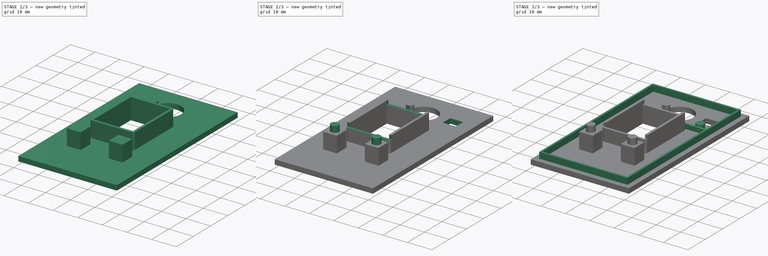
[diagram: build sequence overview — one tinted view per stage of 3, left to right]
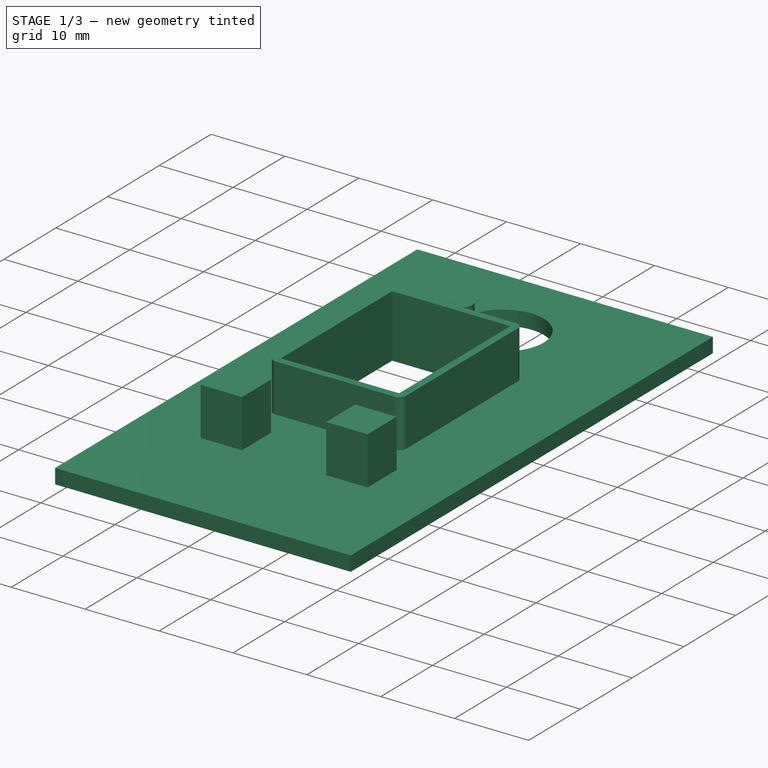
[diagram: stage 1 of 3 — iso view after this stage's code; geometry added in this stage tinted green]
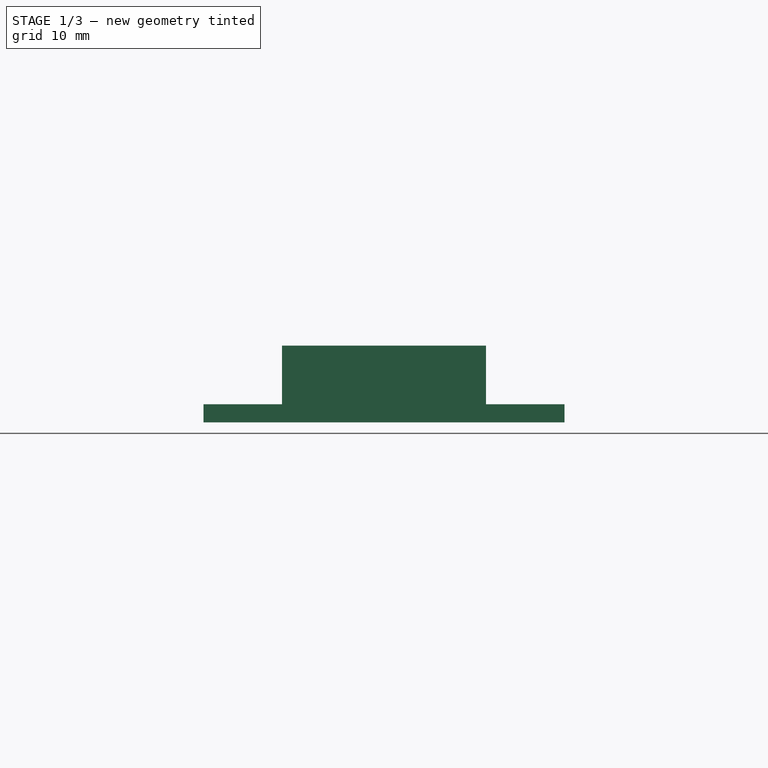
[diagram: stage 1 of 3 — front view after this stage's code; geometry added in this stage tinted green]
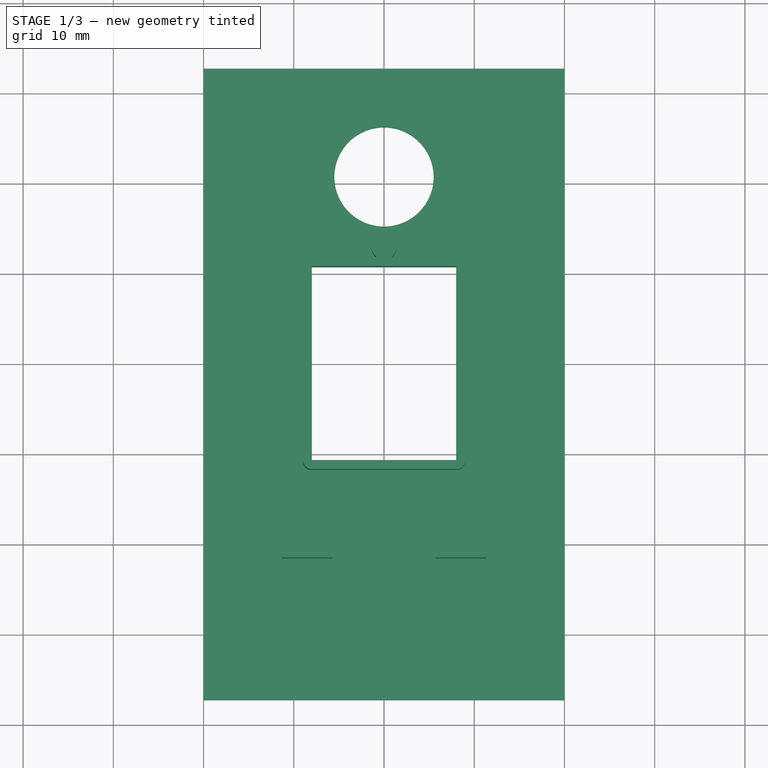
[diagram: stage 1 of 3 — top view after this stage's code; geometry added in this stage tinted green]
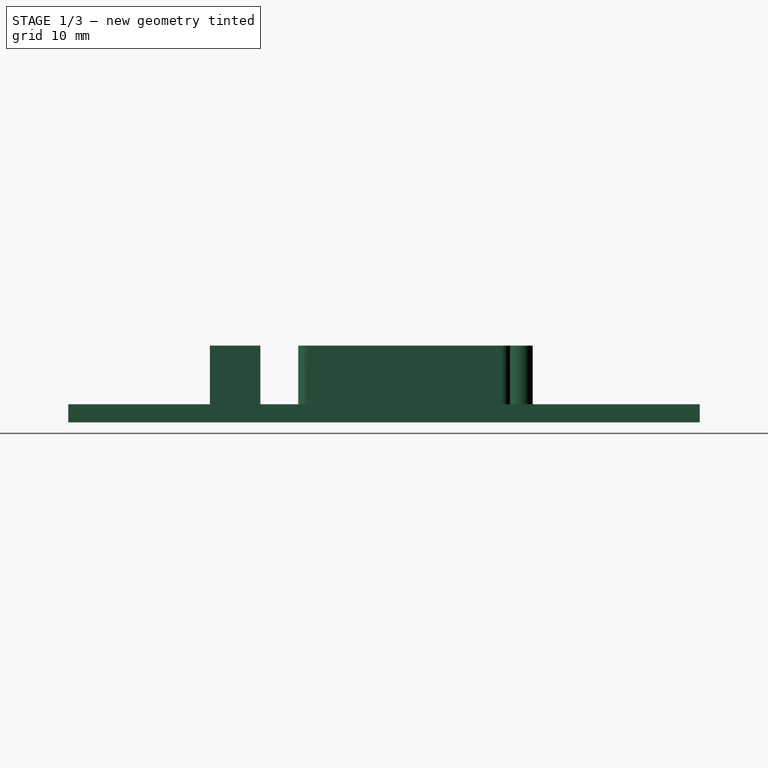
[diagram: stage 1 of 3 — right view after this stage's code; geometry added in this stage tinted green]
FCSTD DOCUMENT  (FreeCAD 2024.409R14555 (Git shallow))
Label: multi-sensor-hass-lidv2-realthunder
License: All rights reserved
LicenseURL: http://en.wikipedia.org/wiki/All_rights_reserved
objects: Sketcher::SketchObject×7, PartDesign::Pad×5, PartDesign::Pocket×2, PartDesign::Body×1
note: 36 computed .brp shape members not serialized (recipe doc carries the construction recipe); baked Part::Feature solids carry a one-line shape summary decoded from their .brp

FEATURE [Sketcher::SketchObject] Sketch
  ArcFitTolerance = 0
  AttachmentSupport = -> [XY_Plane]
  ExternalBSplineMaxDegree = 0
  ExternalBSplineTolerance = 0
  FullyConstrained = true
  InternalTolerance = 1e-06
  InvalidShape = false
  MakeInternals = false
  MapMode = 5
  TreeRank = 0
  ValidateShape = false
  sketch-geometry (10):
    g0: LineSegment StartX=-20 StartY=32.75 StartZ=0 EndX=-20 EndY=-37.25 EndZ=0
    g1: LineSegment StartX=-20 StartY=-37.25 StartZ=0 EndX=20 EndY=-37.25 EndZ=0
    g2: LineSegment StartX=20 StartY=-37.25 StartZ=0 EndX=20 EndY=32.75 EndZ=0
    g3: LineSegment StartX=20 StartY=32.75 StartZ=0 EndX=-20 EndY=32.75 EndZ=0
    g4: Circle CenterX=0 CenterY=20.75 CenterZ=0 NormalX=0 NormalY=0 NormalZ=1 AngleXU=0 Radius=5.5
    g5: LineSegment StartX=-8 StartY=-10.75 StartZ=0 EndX=8 EndY=-10.75 EndZ=0
    g6: LineSegment StartX=8 StartY=-10.75 StartZ=0 EndX=8 EndY=10.75 EndZ=0
    g7: LineSegment StartX=8 StartY=10.75 StartZ=0 EndX=-8 EndY=10.75 EndZ=0
    g8: LineSegment StartX=-8 StartY=10.75 StartZ=0 EndX=-8 EndY=-10.75 EndZ=0
    g9: GeomPoint [constr] X=0 Y=0 Z=0
  constraints (26):
    c: Coincident(g0,g1)
    c: Coincident(g1,g2)
    c: Coincident(g2,g3)
    c: Coincident(g3,g0)
    c: Vertical(g0)
    c: Vertical(g2)
    c: Horizontal(g1)
    c: DistanceX(g1,g1) = 40
    c: DistanceY(g0,g0) = 70
    c: PointOnObject(g4,g-2)
    c: Diameter(g4) = 11
    c: Distance(g4,g3) = 12
    c: Coincident(g5,g6)
    c: Coincident(g6,g7)
    c: Coincident(g7,g8)
    c: Coincident(g8,g5)
    c: Horizontal(g5)
    c: Horizontal(g7)
    c: Vertical(g6)
    c: Vertical(g8)
    c: Symmetric(g7,g5,g9)
    c: Distance(g6,g8) = 16
    c: Distance(g5,g7) = 21.5
    c: Distance(g4,g7) = 10
    c: Coincident(g9,g-1)
    c: Symmetric(g2,g0,g-2)
FEATURE [PartDesign::Pad] Pad
  AddSubType = 0
  AutoTaperInnerAngle = true
  CheckUpToFaceLimits = true
  ClaimChildren = false
  Direction = (0,0,1)
  Fit = 0
  FitJoin = 0
  InnerFit = 0
  InnerFitJoin = 0
  InvalidShape = false
  Length = 2
  Length2 = 10
  NewSolid = false
  Profile = -> Sketch
  ReferenceAxis = -> Sketch [N_Axis]
  Suppress = false
  TaperInnerAngle = 0
  TaperInnerAngleRev = 0
  TreeRank = 0
  Type = 0
  ValidateShape = false
  _ProfileBasedVersion = 0
FEATURE [Sketcher::SketchObject] Sketch001
  ArcFitTolerance = 0
  AttachmentSupport = -> [Pad]
  ExternalBSplineMaxDegree = 0
  ExternalBSplineTolerance = 0
  ExternalGeometry = -> [Pad]
  FullyConstrained = true
  InternalTolerance = 1e-06
  InvalidShape = false
  MakeInternals = false
  MapMode = 5
  Placement = pos=(0,0,2) rot=(0,0,1;0rad)
  Support = -> [Pad]
  TreeRank = 0
  ValidateShape = false
  sketch-geometry (25):
    g0: LineSegment StartX=-8 StartY=10.75 StartZ=0 EndX=-8 EndY=-10.75 EndZ=0
    g1: LineSegment StartX=-8 StartY=-10.75 StartZ=0 EndX=8 EndY=-10.75 EndZ=0
    g2: LineSegment StartX=8 StartY=-10.75 StartZ=0 EndX=8 EndY=10.75 EndZ=0
    g3: LineSegment StartX=8 StartY=10.75 StartZ=0 EndX=-8 EndY=10.75 EndZ=0
    g4: GeomPoint [constr] X=0 Y=-2e-16 Z=0
    g5: LineSegment StartX=-11.3 StartY=-15.95 StartZ=0 EndX=-11.3 EndY=-21.55 EndZ=0
    g6: LineSegment StartX=-11.3 StartY=-21.55 StartZ=0 EndX=-5.7 EndY=-21.55 EndZ=0
    g7: LineSegment StartX=-5.7 StartY=-21.55 StartZ=0 EndX=-5.7 EndY=-15.95 EndZ=0
    g8: LineSegment StartX=-5.7 StartY=-15.95 StartZ=0 EndX=-11.3 EndY=-15.95 EndZ=0
    g9: GeomPoint [constr] X=-8.5 Y=-18.75 Z=0
    g10: LineSegment StartX=5.7 StartY=-15.95 StartZ=0 EndX=5.7 EndY=-21.55 EndZ=0
    g11: LineSegment StartX=5.7 StartY=-21.55 StartZ=0 EndX=11.3 EndY=-21.55 EndZ=0
    g12: LineSegment StartX=11.3 StartY=-21.55 StartZ=0 EndX=11.3 EndY=-15.95 EndZ=0
    g13: LineSegment StartX=11.3 StartY=-15.95 StartZ=0 EndX=5.7 EndY=-15.95 EndZ=0
    g14: GeomPoint [constr] X=8.5 Y=-18.75 Z=0
    g15: LineSegment StartX=-8 StartY=-11.75 StartZ=0 EndX=8 EndY=-11.75 EndZ=0
    g16: ArcOfCircle CenterX=8 CenterY=-10.75 CenterZ=0 NormalX=0 NormalY=0 NormalZ=-1 AngleXU=1.5708 Radius=1 StartAngle=1.5708 EndAngle=3.14159
    g17: LineSegment StartX=9 StartY=-10.75 StartZ=0 EndX=9 EndY=10.75 EndZ=0
    g18: ArcOfCircle CenterX=8 CenterY=10.75 CenterZ=0 NormalX=0 NormalY=0 NormalZ=-1 AngleXU=0 Radius=1 StartAngle=1.5708 EndAngle=3.14159
    g19: LineSegment StartX=8 StartY=11.75 StartZ=0 EndX=0.8 EndY=11.75 EndZ=0
    g20: ArcOfCircle CenterX=-8 CenterY=10.75 CenterZ=0 NormalX=0 NormalY=0 NormalZ=-1 AngleXU=-1.5708 Radius=1 StartAngle=1.5708 EndAngle=3.14159
    g21: LineSegment StartX=-9 StartY=10.75 StartZ=0 EndX=-9 EndY=-10.75 EndZ=0
    g22: ArcOfCircle CenterX=-8 CenterY=-10.75 CenterZ=0 NormalX=0 NormalY=0 NormalZ=-1 AngleXU=-3.14159 Radius=1 StartAngle=1.5708 EndAngle=3.14159
    g23: ArcOfCircle CenterX=0 CenterY=12.8683 CenterZ=0 NormalX=0 NormalY=0 NormalZ=1 AngleXU=0 Radius=1.375 StartAngle=5.33335 EndAngle=10.3746
    g24: LineSegment StartX=-0.8 StartY=11.75 StartZ=0 EndX=-8.00001 EndY=11.75 EndZ=0
  constraints (60):
    c: Coincident(g0,g1)
    c: Coincident(g1,g2)
    c: Coincident(g2,g3)
    c: Coincident(g3,g0)
    c: Vertical(g0)
    c: Horizontal(g1)
    c: Horizontal(g3)
    c: Symmetric(g2,g0,g4)
    c: PointOnObject(g4,g-2)
    c: Coincident(g1,g-5)
    c: Coincident(g5,g6)
    c: Coincident(g6,g7)
    c: Coincident(g7,g8)
    c: Coincident(g8,g5)
    c: Vertical(g5)
    c: Vertical(g7)
    c: Horizontal(g6)
    c: Horizontal(g8)
    c: Symmetric(g7,g5,g9)
    c: Coincident(g10,g11)
    c: Coincident(g11,g12)
    c: Coincident(g12,g13)
    c: Coincident(g13,g10)
    c: Vertical(g10)
    c: Vertical(g12)
    c: Horizontal(g11)
    c: Horizontal(g13)
    c: Symmetric(g12,g10,g14)
    c: Equal(g5,g8)
    c: Equal(g8,g10)
    c: Equal(g10,g13)
    c: DistanceX(g6,g6) = 5.6
    c: Symmetric(g9,g14,g-2)
    c: Coincident(g2,g-4)
    c: Tangent(g15,g16) = -1.5708
    c: Tangent(g15,g22) = -1.5708
    c: Tangent(g16,g17) = -1.5708
    c: Tangent(g17,g18) = -1.5708
    c: Tangent(g18,g19) = -1.5708
    c: Coincident(g24,g20) = -1.5708
    c: Tangent(g20,g21) = -1.5708
    c: Tangent(g21,g22) = -1.5708
    c: Coincident(g22,g0)
    c: DistanceY(g9,g0) = 8
    c: DistanceX(g9,g0) = 0.5
    c: Coincident(g20,g0)
    c: Coincident(g18,g2)
    c: Coincident(g16,g1)
    c: Parallel(g17,g21)
    c: Parallel(g15,g19)
    c: Parallel(g15,g1)
    c: Distance(g17,g2) = 1
    c: PointOnObject(g23,g-2)
    c: Diameter(g23) = 2.75
    c: Coincident(g19,g23)
    c: Coincident(g24,g23)
    c: Horizontal(g24)
    c: Horizontal(g19,g23)
    c: Distance(g23,g19) = 1.6
    c: DistanceY(g0,g20) = 1
FEATURE [PartDesign::Pad] Pad001
  AddSubType = 0
  AutoTaperInnerAngle = true
  BaseFeature = -> Pad
  CheckUpToFaceLimits = true
  ClaimChildren = false
  Direction = (0,0,1)
  Fit = 0
  FitJoin = 0
  InnerFit = 0
  InnerFitJoin = 0
  InvalidShape = false
  Length = 6.5
  Length2 = 10
  NewSolid = false
  Profile = -> Sketch001
  ReferenceAxis = -> Sketch001 [N_Axis]
  Suppress = false
  TaperInnerAngle = 0
  TaperInnerAngleRev = 0
  TreeRank = 0
  Type = 0
  ValidateShape = false
  _ProfileBasedVersion = 0
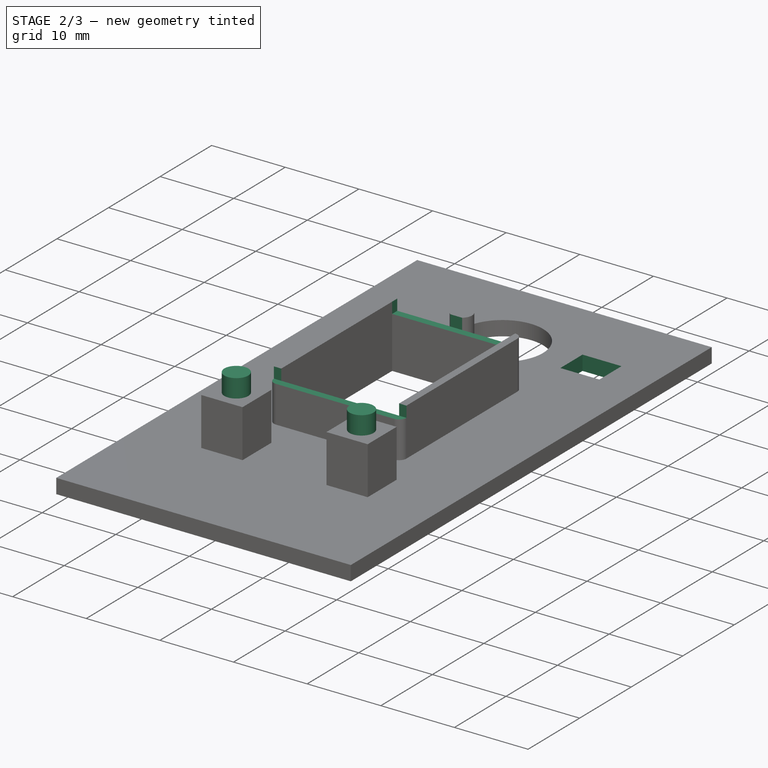
[diagram: stage 2 of 3 — iso view after this stage's code; geometry added in this stage tinted green]
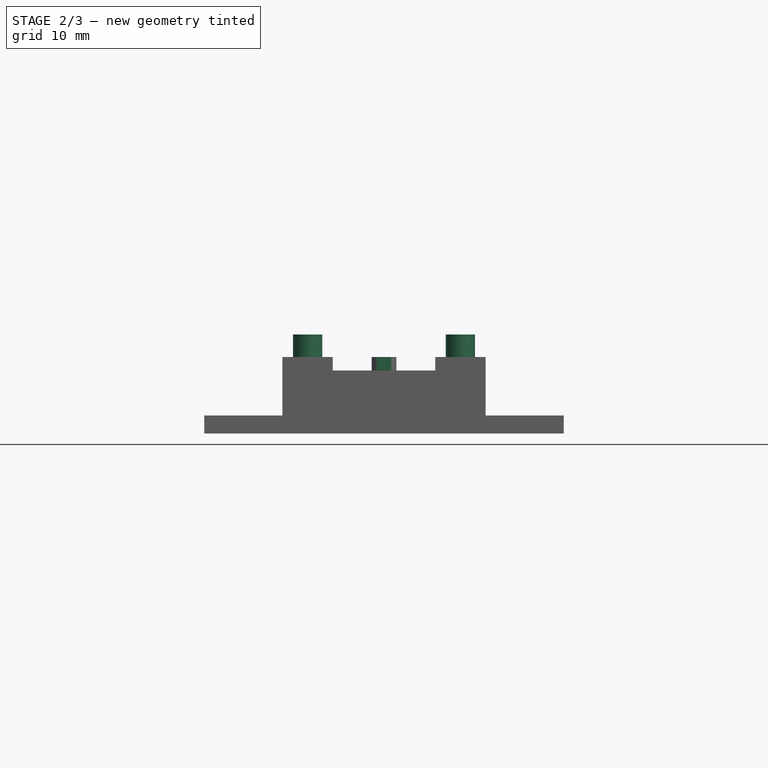
[diagram: stage 2 of 3 — front view after this stage's code; geometry added in this stage tinted green]
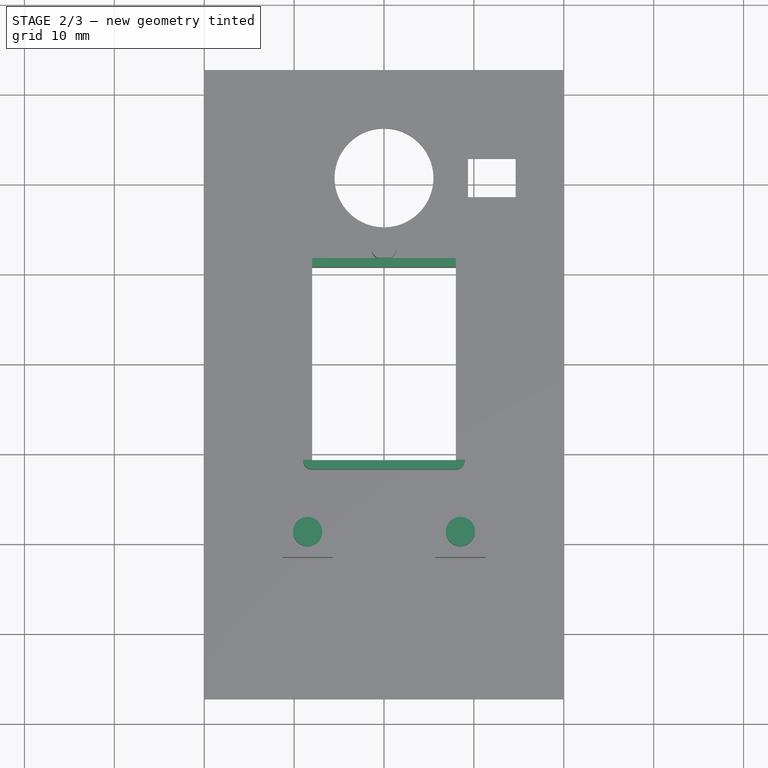
[diagram: stage 2 of 3 — top view after this stage's code; geometry added in this stage tinted green]
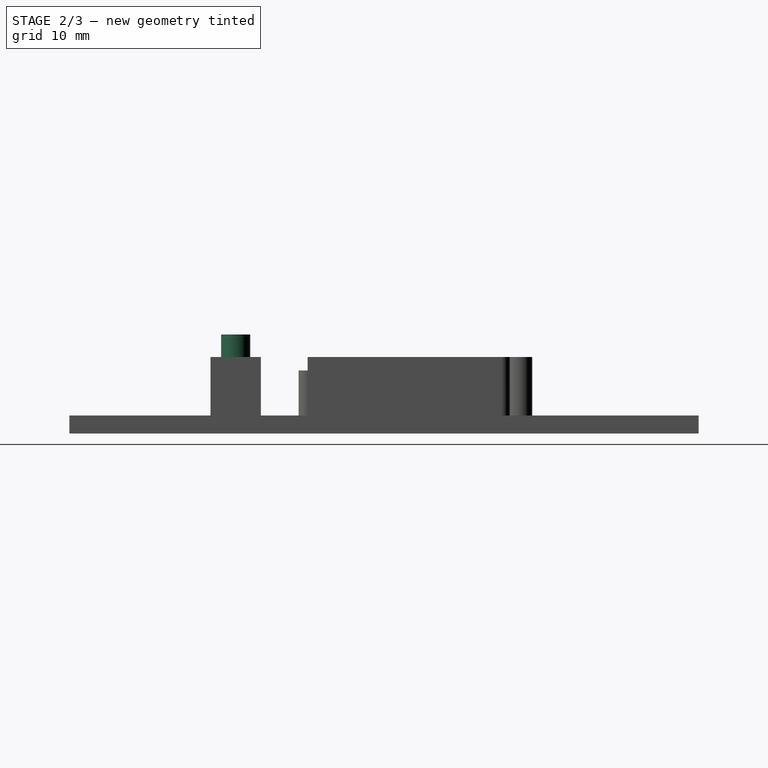
[diagram: stage 2 of 3 — right view after this stage's code; geometry added in this stage tinted green]
FEATURE [Sketcher::SketchObject] Sketch002
  ArcFitTolerance = 0
  AttachmentSupport = -> [Pad001]
  ExternalBSplineMaxDegree = 0
  ExternalBSplineTolerance = 0
  ExternalGeometry = -> [Pad001]
  FullyConstrained = true
  InternalTolerance = 1e-06
  InvalidShape = false
  MakeInternals = false
  MapMode = 5
  Placement = pos=(0,0,8.5) rot=(0,0,1;0rad)
  Support = -> [Pad001]
  TreeRank = 0
  ValidateShape = false
  sketch-geometry (2):
    g0: Circle CenterX=-8.5 CenterY=-18.75 CenterZ=0 NormalX=0 NormalY=0 NormalZ=1 AngleXU=0 Radius=1.625
    g1: Circle CenterX=8.5 CenterY=-18.75 CenterZ=0 NormalX=0 NormalY=0 NormalZ=1 AngleXU=0 Radius=1.625
  constraints (4):
    c: Equal(g0,g1)
    c: Symmetric(g-3,g-4,g0)
    c: Diameter(g0) = 3.25
    c: Symmetric(g-5,g-6,g1)
FEATURE [PartDesign::Pad] Pad002
  AddSubType = 0
  AutoTaperInnerAngle = true
  BaseFeature = -> Pad001
  CheckUpToFaceLimits = true
  ClaimChildren = false
  Direction = (0,0,1)
  Fit = 0
  FitJoin = 0
  InnerFit = 0
  InnerFitJoin = 0
  InvalidShape = false
  Length = 2.5
  Length2 = 10
  NewSolid = false
  Profile = -> Sketch002
  ReferenceAxis = -> Sketch002 [N_Axis]
  Suppress = false
  TaperInnerAngle = 0
  TaperInnerAngleRev = 0
  TreeRank = 0
  Type = 0
  ValidateShape = false
  _ProfileBasedVersion = 0
FEATURE [Sketcher::SketchObject] Sketch003
  ArcFitTolerance = 0
  AttachmentSupport = -> [Pad002]
  ExternalBSplineMaxDegree = 0
  ExternalBSplineTolerance = 0
  ExternalGeometry = -> [Pad002]
  FullyConstrained = true
  InternalTolerance = 1e-06
  InvalidShape = false
  MakeInternals = false
  MapMode = 5
  Placement = pos=(0,0,8.5) rot=(0,0,1;0rad)
  Support = -> [Pad002]
  TreeRank = 0
  ValidateShape = false
  sketch-geometry (8):
    g0: LineSegment StartX=-8.00001 StartY=11.75 StartZ=0 EndX=-8.00001 EndY=10.75 EndZ=0
    g1: LineSegment StartX=-8.00001 StartY=10.75 StartZ=0 EndX=8 EndY=10.75 EndZ=0
    g2: LineSegment StartX=8 StartY=10.75 StartZ=0 EndX=8 EndY=11.75 EndZ=0
    g3: LineSegment StartX=8 StartY=11.75 StartZ=0 EndX=-8.00001 EndY=11.75 EndZ=0
    g4: LineSegment StartX=-9 StartY=-10.75 StartZ=0 EndX=-9 EndY=-11.75 EndZ=0
    g5: LineSegment StartX=-9 StartY=-11.75 StartZ=0 EndX=9 EndY=-11.75 EndZ=0
    g6: LineSegment StartX=9 StartY=-11.75 StartZ=0 EndX=9 EndY=-10.75 EndZ=0
    g7: LineSegment StartX=9 StartY=-10.75 StartZ=0 EndX=-9 EndY=-10.75 EndZ=0
  constraints (20):
    c: Coincident(g0,g1)
    c: Coincident(g1,g2)
    c: Coincident(g2,g3)
    c: Coincident(g3,g0)
    c: Vertical(g0)
    c: Vertical(g2)
    c: Horizontal(g1)
    c: Horizontal(g3)
    c: Coincident(g0,g-3)
    c: Coincident(g1,g-5)
    c: Coincident(g4,g5)
    c: Coincident(g5,g6)
    c: Coincident(g6,g7)
    c: Coincident(g7,g4)
    c: Vertical(g4)
    c: Vertical(g6)
    c: Horizontal(g5)
    c: Coincident(g4,g-9)
    c: Coincident(g6,g-8)
    c: PointOnObject(g-4,g5)
FEATURE [PartDesign::Pocket] Pocket
  AddSubType = 1
  AutoTaperInnerAngle = true
  BaseFeature = -> Pad002
  CheckUpToFaceLimits = true
  ClaimChildren = false
  Direction = (0,0,-1)
  Fit = 0
  FitJoin = 0
  InnerFit = 0
  InnerFitJoin = 0
  InvalidShape = false
  Length = 1.5
  Length2 = 5
  NewSolid = false
  Profile = -> Sketch003
  ReferenceAxis = -> Sketch003 [N_Axis]
  Suppress = false
  TaperInnerAngle = 0
  TaperInnerAngleRev = 0
  TreeRank = 0
  Type = 0
  ValidateShape = false
  _ProfileBasedVersion = 0
  _Version = 0
FEATURE [Sketcher::SketchObject] Sketch004
  ArcFitTolerance = 0
  AttachmentSupport = -> [Pocket]
  ExternalBSplineMaxDegree = 0
  ExternalBSplineTolerance = 0
  ExternalGeometry = -> [Pocket]
  FullyConstrained = true
  InternalTolerance = 1e-06
  InvalidShape = false
  MakeInternals = false
  MapMode = 5
  Placement = pos=(0,0,2) rot=(0,0,1;0rad)
  Support = -> [Pocket]
  TreeRank = 0
  ValidateShape = false
  sketch-geometry (5):
    g0: LineSegment StartX=9.35 StartY=18.6 StartZ=0 EndX=14.65 EndY=18.6 EndZ=0
    g1: LineSegment StartX=14.65 StartY=18.6 StartZ=0 EndX=14.65 EndY=22.9 EndZ=0
    g2: LineSegment StartX=14.65 StartY=22.9 StartZ=0 EndX=9.35 EndY=22.9 EndZ=0
    g3: LineSegment StartX=9.35 StartY=22.9 StartZ=0 EndX=9.35 EndY=18.6 EndZ=0
    g4: GeomPoint [constr] X=12 Y=20.75 Z=0
  constraints (13):
    c: Coincident(g0,g1)
    c: Coincident(g1,g2)
    c: Coincident(g2,g3)
    c: Coincident(g3,g0)
    c: Horizontal(g0)
    c: Horizontal(g2)
    c: Vertical(g1)
    c: Vertical(g3)
    c: Symmetric(g2,g0,g4)
    c: Distance(g1,g3) = 5.3
    c: Distance(g0,g2) = 4.3
    c: Horizontal(g4,g-3)
    c: Distance(g-3,g4) = 12
FEATURE [PartDesign::Pocket] Pocket001
  AddSubType = 1
  AutoTaperInnerAngle = true
  BaseFeature = -> Pocket
  CheckUpToFaceLimits = true
  ClaimChildren = false
  Direction = (0,0,-1)
  Fit = 0
  FitJoin = 0
  InnerFit = 0
  InnerFitJoin = 0
  InvalidShape = false
  Length = 5
  Length2 = 5
  NewSolid = false
  Profile = -> Sketch004
  ReferenceAxis = -> Sketch004 [N_Axis]
  Suppress = false
  TaperInnerAngle = 0
  TaperInnerAngleRev = 0
  TreeRank = 0
  Type = 1
  ValidateShape = false
  _ProfileBasedVersion = 0
  _Version = 0
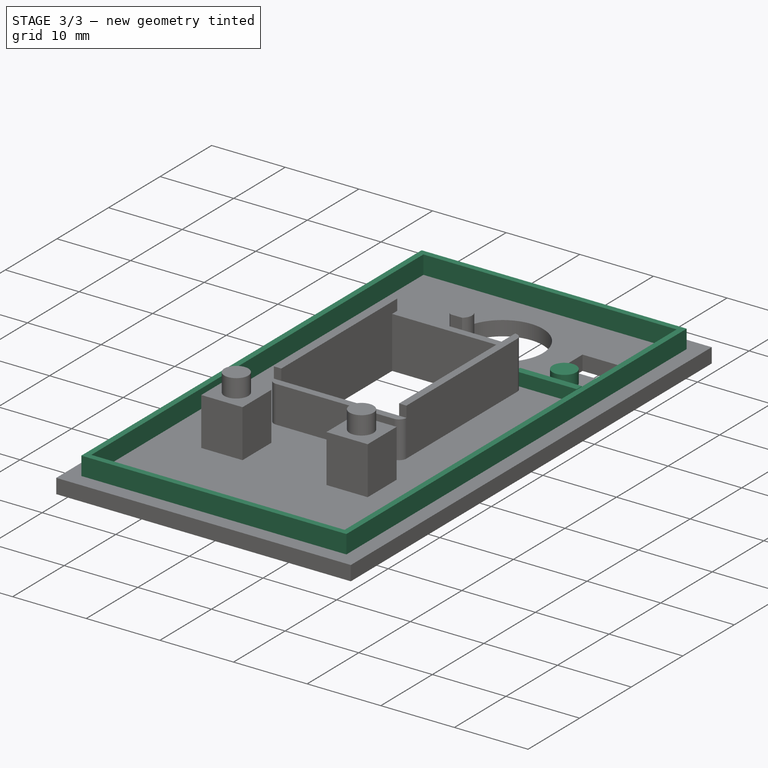
[diagram: stage 3 of 3 — iso view after this stage's code; geometry added in this stage tinted green]
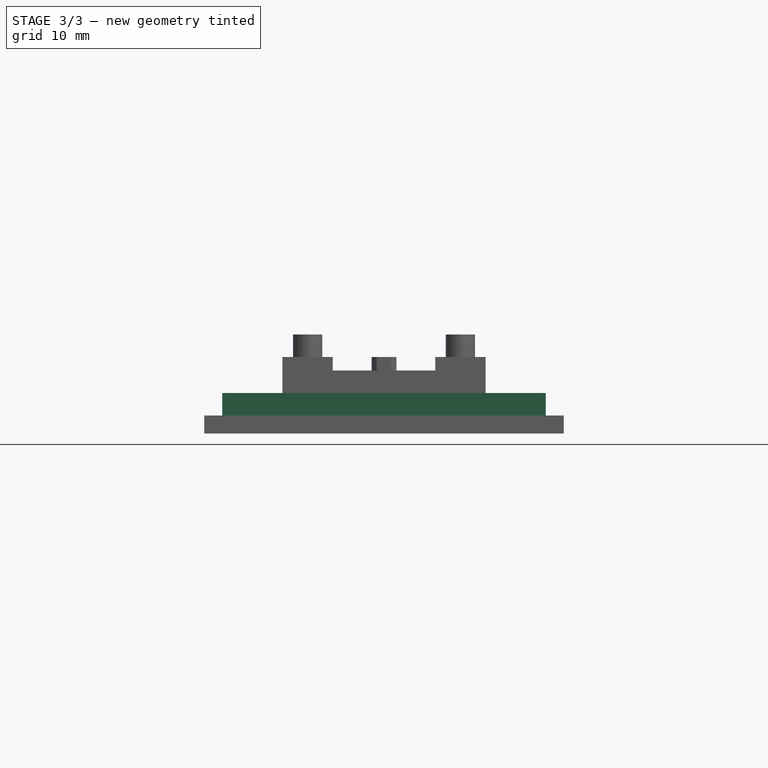
[diagram: stage 3 of 3 — front view after this stage's code; geometry added in this stage tinted green]
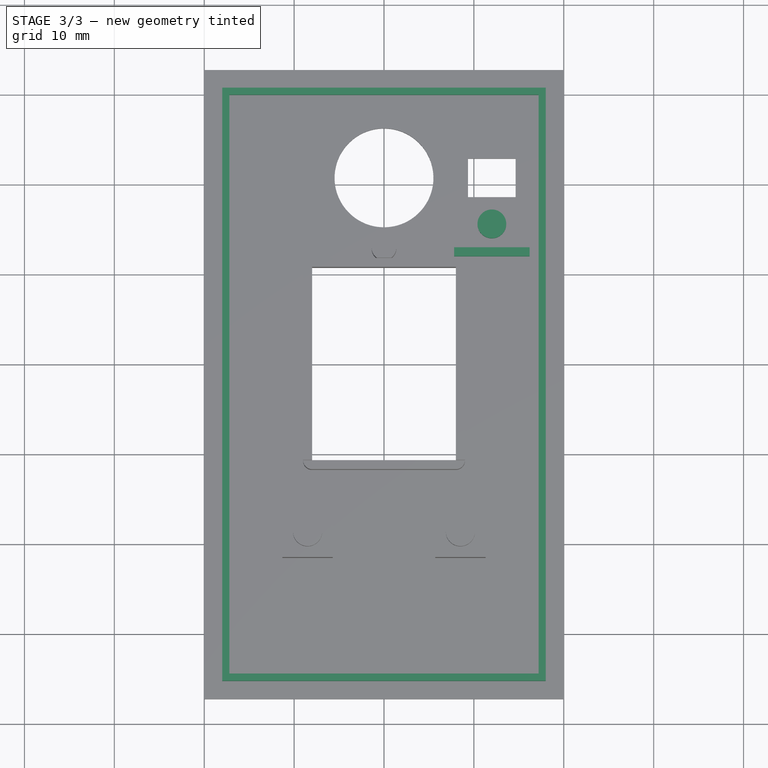
[diagram: stage 3 of 3 — top view after this stage's code; geometry added in this stage tinted green]
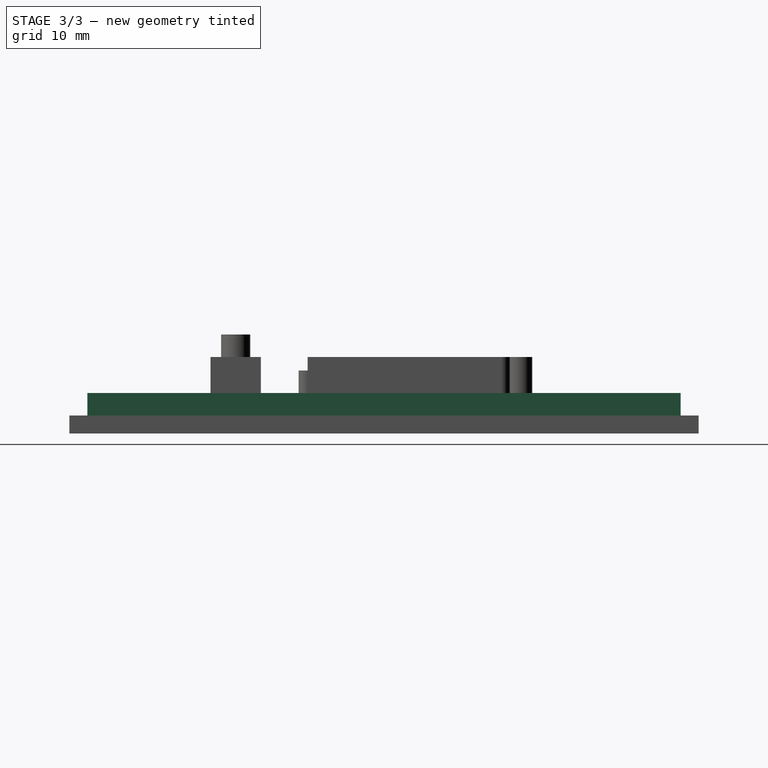
[diagram: stage 3 of 3 — right view after this stage's code; geometry added in this stage tinted green]
FEATURE [Sketcher::SketchObject] Sketch005
  ArcFitTolerance = 0
  AttachmentSupport = -> [Pocket001]
  ExternalBSplineMaxDegree = 0
  ExternalBSplineTolerance = 0
  ExternalGeometry = -> [Pocket001]
  FullyConstrained = true
  InternalTolerance = 1e-06
  InvalidShape = false
  MakeInternals = false
  MapMode = 5
  Placement = pos=(0,0,2) rot=(0,0,1;0rad)
  Support = -> [Pocket001]
  TreeRank = 0
  ValidateShape = false
  sketch-geometry (7):
    g0: GeomPoint X=12 Y=20.75 Z=0
    g1: Circle CenterX=12 CenterY=15.6 CenterZ=0 NormalX=0 NormalY=0 NormalZ=1 AngleXU=0 Radius=1.6
    g2: LineSegment StartX=7.8 StartY=13 StartZ=0 EndX=7.8 EndY=12 EndZ=0
    g3: LineSegment StartX=7.8 StartY=12 StartZ=0 EndX=16.2 EndY=12 EndZ=0
    g4: LineSegment StartX=16.2 StartY=12 StartZ=0 EndX=16.2 EndY=13 EndZ=0
    g5: LineSegment StartX=16.2 StartY=13 StartZ=0 EndX=7.8 EndY=13 EndZ=0
    g6: GeomPoint [constr] X=12 Y=12.5 Z=0
  constraints (17):
    c: Symmetric(g-5,g-3,g0)
    c: Diameter(g1) = 3.2
    c: Vertical(g1,g0)
    c: Distance(g1,g-5) = 7.3
    c: Coincident(g2,g3)
    c: Coincident(g3,g4)
    c: Coincident(g4,g5)
    c: Coincident(g5,g2)
    c: Vertical(g2)
    c: Vertical(g4)
    c: Horizontal(g3)
    c: Horizontal(g5)
    c: Symmetric(g4,g2,g6)
    c: Vertical(g1,g6)
    c: Distance(g1,g5) = 2.6
    c: DistanceY(g4,g4) = 1
    c: DistanceX(g3,g3) = 8.4
FEATURE [PartDesign::Pad] Pad003
  AddSubType = 0
  AlongSketchNormal = false
  AutoTaperInnerAngle = true
  BaseFeature = -> Pocket001
  CheckUpToFaceLimits = true
  ClaimChildren = false
  Direction = (0,0,1)
  Fit = 0
  FitJoin = 0
  InnerFit = 0
  InnerFitJoin = 0
  InvalidShape = false
  Length = 1.75
  Length2 = 10
  NewSolid = false
  Profile = -> Sketch005 [Edge1,Edge5,Edge3,Edge4,Edge2]
  ReferenceAxis = -> Sketch005 [N_Axis]
  Suppress = false
  TaperInnerAngle = 0
  TaperInnerAngleRev = 0
  TreeRank = 0
  Type = 0
  ValidateShape = false
  _ProfileBasedVersion = 0
FEATURE [Sketcher::SketchObject] Sketch006
  ArcFitTolerance = 0
  AttachmentSupport = -> [Pad003]
  ExternalBSplineMaxDegree = 0
  ExternalBSplineTolerance = 0
  ExternalGeometry = -> [Pad003]
  FullyConstrained = true
  InternalTolerance = 1e-06
  InvalidShape = false
  MakeInternals = false
  MapMode = 5
  Placement = pos=(0,0,2) rot=(0,0,1;0rad)
  Support = -> [Pad003]
  TreeRank = 0
  ValidateShape = false
  sketch-geometry (8):
    g0: LineSegment StartX=-18 StartY=30.75 StartZ=0 EndX=18 EndY=30.75 EndZ=0
    g1: LineSegment StartX=18 StartY=30.75 StartZ=0 EndX=18 EndY=-35.25 EndZ=0
    g2: LineSegment StartX=18 StartY=-35.25 StartZ=0 EndX=-18 EndY=-35.25 EndZ=0
    g3: LineSegment StartX=-18 StartY=-35.25 StartZ=0 EndX=-18 EndY=30.75 EndZ=0
    g4: LineSegment StartX=-17.2 StartY=29.95 StartZ=0 EndX=17.2 EndY=29.95 EndZ=0
    g5: LineSegment StartX=17.2 StartY=29.95 StartZ=0 EndX=17.2 EndY=-34.45 EndZ=0
    g6: LineSegment StartX=17.2 StartY=-34.45 StartZ=0 EndX=-17.2 EndY=-34.45 EndZ=0
    g7: LineSegment StartX=-17.2 StartY=-34.45 StartZ=0 EndX=-17.2 EndY=29.95 EndZ=0
  constraints (24):
    c: Coincident(g0,g1)
    c: Coincident(g1,g2)
    c: Coincident(g2,g3)
    c: Coincident(g3,g0)
    c: Horizontal(g0)
    c: Horizontal(g2)
    c: Vertical(g1)
    c: Vertical(g3)
    c: Coincident(g4,g5)
    c: Coincident(g5,g6)
    c: Coincident(g6,g7)
    c: Coincident(g7,g4)
    c: Horizontal(g4)
    c: Horizontal(g6)
    c: Vertical(g5)
    c: Vertical(g7)
    c: DistanceX(g-5,g4) = 2.8
    c: DistanceX(g4,g-4) = 2.8
    c: DistanceY(g4,g-5) = 2.8
    c: DistanceY(g-6,g6) = 2.8
    c: DistanceY(g4,g0) = 0.8
    c: DistanceY(g1,g5) = 0.8
    c: DistanceX(g2,g6) = 0.8
    c: DistanceX(g5,g1) = 0.8
FEATURE [PartDesign::Pad] Pad004
  AddSubType = 0
  AlongSketchNormal = false
  AutoTaperInnerAngle = true
  BaseFeature = -> Pad003
  CheckUpToFaceLimits = true
  ClaimChildren = false
  Direction = (0,0,1)
  Fit = 0
  FitJoin = 0
  InnerFit = 0
  InnerFitJoin = 0
  InvalidShape = false
  Length = 2.5
  Length2 = 10
  NewSolid = false
  Profile = -> Sketch006
  ReferenceAxis = -> Sketch006 [N_Axis]
  Suppress = false
  TaperInnerAngle = 0
  TaperInnerAngleRev = 0
  TreeRank = 0
  Type = 0
  ValidateShape = false
  _ProfileBasedVersion = 0
FEATURE [PartDesign::Body] Body
  AutoGroupSolids = false
  ClaimAllChildren = false
  ExportMode = 0
  Group = -> [Sketch,Pad,Sketch001,Pad001,Sketch002,Pad002,Sketch003,Pocket,Sketch004,Pocket001,Sketch005,Pad003,Sketch006,Pad004]
  InvalidShape = false
  Origin = -> Origin
  Tip = -> Pad004
  TreeRank = 0
  ValidateShape = false
  _ExportChildren = -> [Pad,Pad001,Pad002,Pocket,Pocket001,Pad003,Pad004]
  _GroupVersion = 1
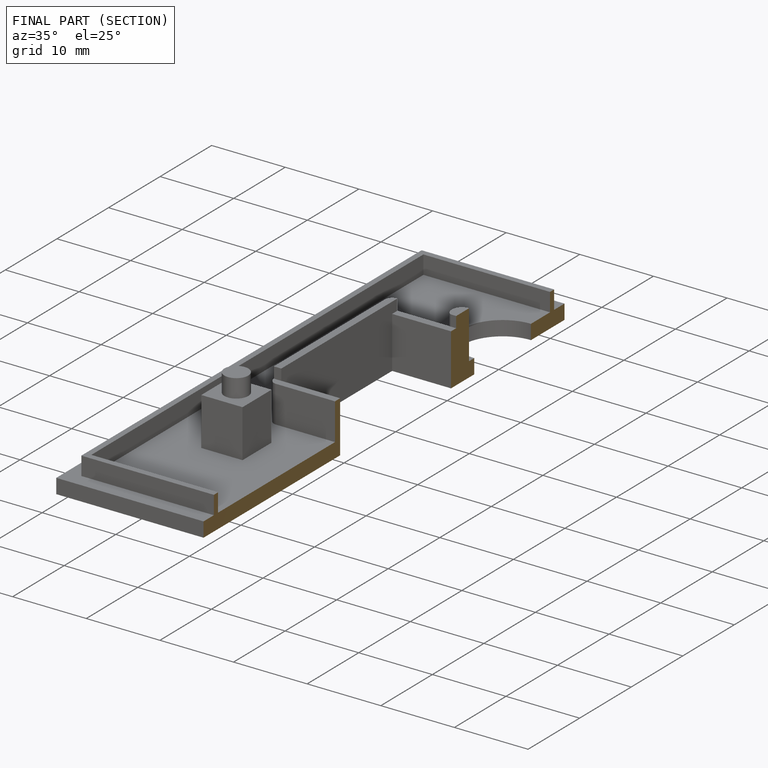
[diagram: finished part — half-section view (interior)]
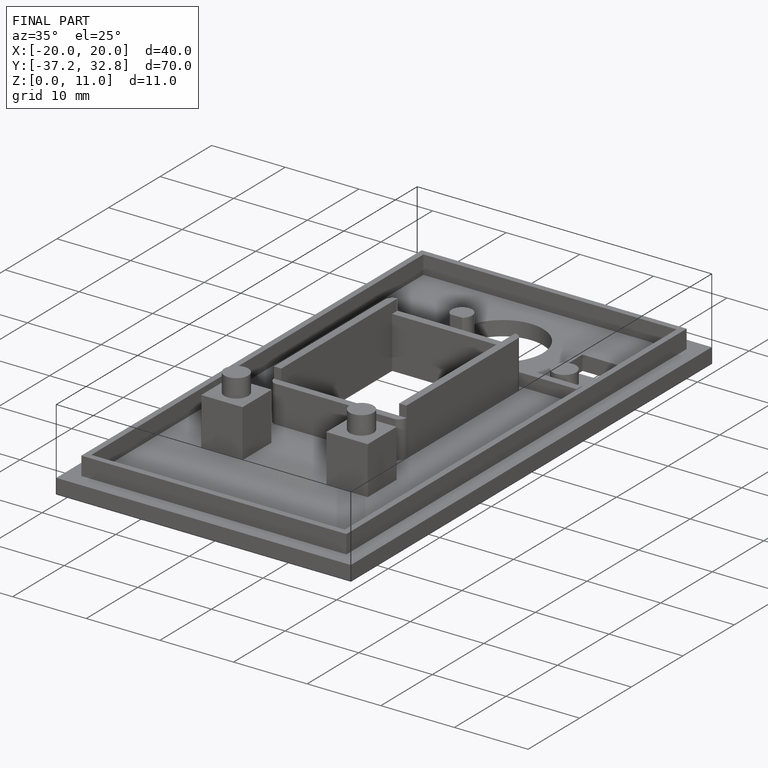
[diagram: finished part — iso view with bounding-box wireframe]
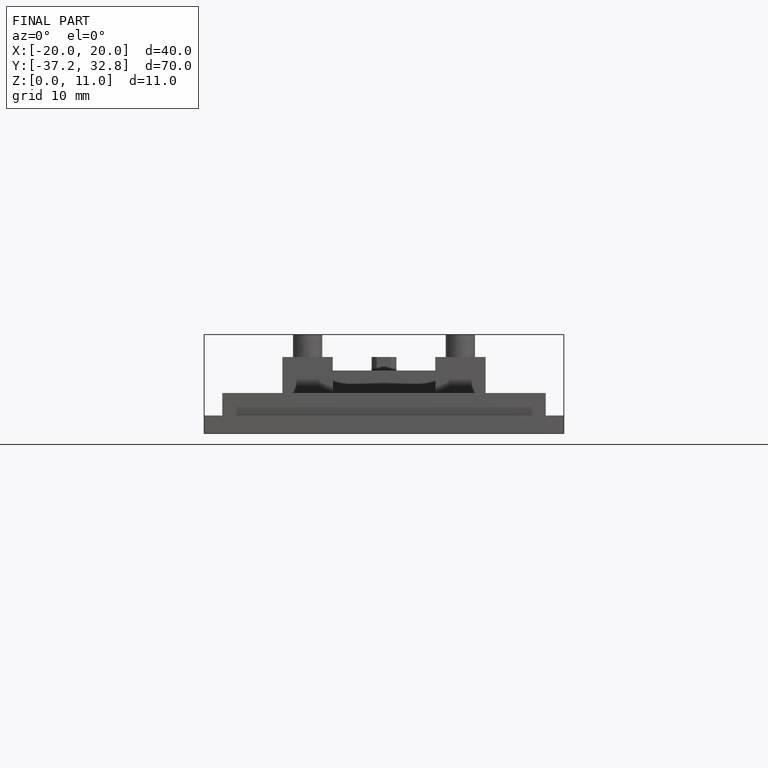
[diagram: finished part — front view with bounding-box wireframe]
